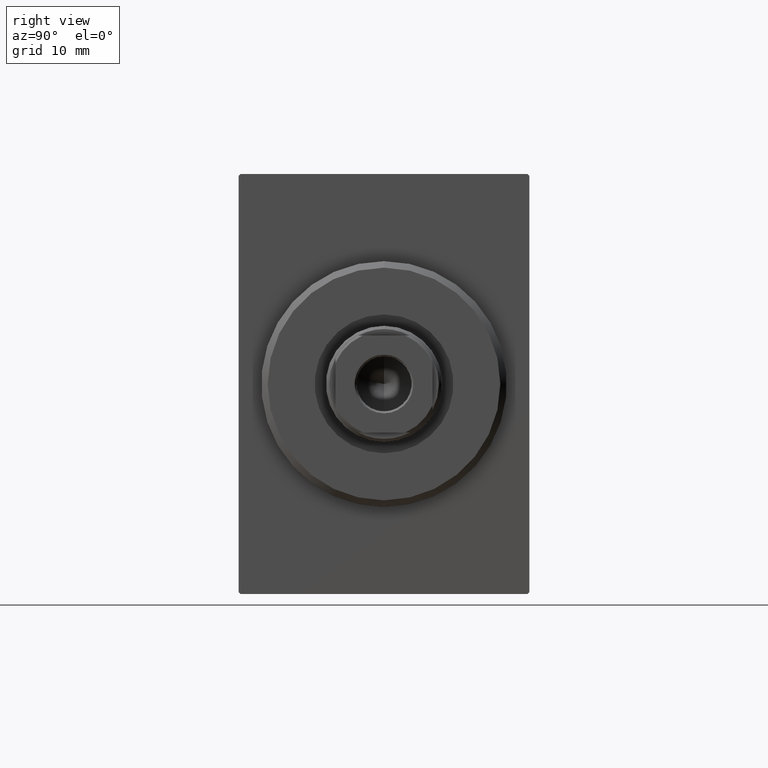
[diagram: clean part render]
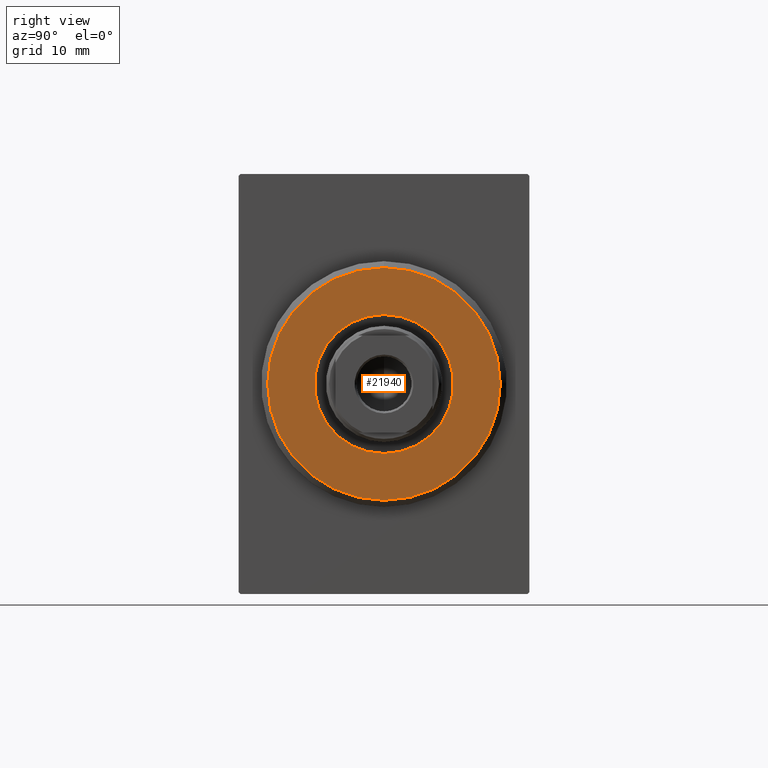
[diagram: same view with one face highlighted and labeled with its STEP entity id]
A machine part, right view. The second image highlights one B-rep face of the part: STEP entity #21940.
In plain terms, the highlighted planar face has unit normal (1, 0, 0).
Its self-contained STEP definition (entity closure, byte-faithful):
#1657 = CARTESIAN_POINT ( 'NONE',  ( 3.000000000000000000, 0.000000000000000000, 0.000000000000000000 ) ) ;
#3316 = ORIENTED_EDGE ( 'NONE', *, *, #40808, .T. ) ;
#4143 = VERTEX_POINT ( 'NONE', #25253 ) ;
#5501 = EDGE_LOOP ( 'NONE', ( #27478, #42244 ) ) ;
#5525 = DIRECTION ( 'NONE',  ( 0.000000000000000000, 0.000000000000000000, -1.000000000000000000 ) ) ;
#7144 = VERTEX_POINT ( 'NONE', #18839 ) ;
#7439 = CARTESIAN_POINT ( 'NONE',  ( 3.000000000000000000, 0.000000000000000000, 0.000000000000000000 ) ) ;
#8553 = EDGE_CURVE ( 'NONE', #37334, #31999, #34116, .T. ) ;
#10662 = DIRECTION ( 'NONE',  ( 0.000000000000000000, 0.000000000000000000, -1.000000000000000000 ) ) ;
#13527 = EDGE_CURVE ( 'NONE', #7144, #4143, #15612, .T. ) ;
#14782 = DIRECTION ( 'NONE',  ( 1.000000000000000000, -0.000000000000000000, 0.000000000000000000 ) ) ;
#15002 = PLANE ( 'NONE',  #29551 ) ;
#15612 = CIRCLE ( 'NONE', #34176, 17.99999999999999645 ) ;
#16167 = EDGE_LOOP ( 'NONE', ( #26529, #3316 ) ) ;
#16355 = CARTESIAN_POINT ( 'NONE',  ( 3.000000000000000000, 0.000000000000000000, 0.000000000000000000 ) ) ;
#16933 = AXIS2_PLACEMENT_3D ( 'NONE', #16355, #29479, #40408 ) ;
#18839 = CARTESIAN_POINT ( 'NONE',  ( 3.000000000000000000, 2.265596578422603002E-15, -17.99999999999999645 ) ) ;
#19421 = DIRECTION ( 'NONE',  ( -1.000000000000000000, 0.000000000000000000, -0.000000000000000000 ) ) ;
#21940 = ADVANCED_FACE ( 'NONE', ( #41068, #37629 ), #15002, .T. ) ;
#23333 = CARTESIAN_POINT ( 'NONE',  ( 3.000000000000000000, 0.000000000000000000, 10.75000000000000000 ) ) ;
#25253 = CARTESIAN_POINT ( 'NONE',  ( 3.000000000000000000, 0.000000000000000000, 17.99999999999999645 ) ) ;
#25893 = DIRECTION ( 'NONE',  ( 0.000000000000000000, 0.000000000000000000, -1.000000000000000000 ) ) ;
#26529 = ORIENTED_EDGE ( 'NONE', *, *, #8553, .T. ) ;
#27478 = ORIENTED_EDGE ( 'NONE', *, *, #39414, .T. ) ;
#28891 = CARTESIAN_POINT ( 'NONE',  ( 3.000000000000000000, 1.316495309083404223E-15, -10.75000000000000000 ) ) ;
#29479 = DIRECTION ( 'NONE',  ( -1.000000000000000000, 0.000000000000000000, -0.000000000000000000 ) ) ;
#29551 = AXIS2_PLACEMENT_3D ( 'NONE', #1657, #14782, #37840 ) ;
#31999 = VERTEX_POINT ( 'NONE', #28891 ) ;
#33504 = DIRECTION ( 'NONE',  ( 1.000000000000000000, -0.000000000000000000, 0.000000000000000000 ) ) ;
#34116 = CIRCLE ( 'NONE', #16933, 10.75000000000000000 ) ;
#34176 = AXIS2_PLACEMENT_3D ( 'NONE', #38277, #35028, #5525 ) ;
#35028 = DIRECTION ( 'NONE',  ( 1.000000000000000000, -0.000000000000000000, 0.000000000000000000 ) ) ;
#36049 = AXIS2_PLACEMENT_3D ( 'NONE', #7439, #33504, #10662 ) ;
#36209 = CARTESIAN_POINT ( 'NONE',  ( 3.000000000000000000, 0.000000000000000000, 0.000000000000000000 ) ) ;
#36758 = AXIS2_PLACEMENT_3D ( 'NONE', #36209, #19421, #25893 ) ;
#37334 = VERTEX_POINT ( 'NONE', #23333 ) ;
#37629 = FACE_BOUND ( 'NONE', #16167, .T. ) ;
#37840 = DIRECTION ( 'NONE',  ( 0.000000000000000000, 0.000000000000000000, -1.000000000000000000 ) ) ;
#38277 = CARTESIAN_POINT ( 'NONE',  ( 3.000000000000000000, 0.000000000000000000, 0.000000000000000000 ) ) ;
#39414 = EDGE_CURVE ( 'NONE', #4143, #7144, #40177, .T. ) ;
#40177 = CIRCLE ( 'NONE', #36049, 17.99999999999999645 ) ;
#40408 = DIRECTION ( 'NONE',  ( 0.000000000000000000, 0.000000000000000000, -1.000000000000000000 ) ) ;
#40808 = EDGE_CURVE ( 'NONE', #31999, #37334, #40913, .T. ) ;
#40913 = CIRCLE ( 'NONE', #36758, 10.75000000000000000 ) ;
#41068 = FACE_OUTER_BOUND ( 'NONE', #5501, .T. ) ;
#42244 = ORIENTED_EDGE ( 'NONE', *, *, #13527, .T. ) ;